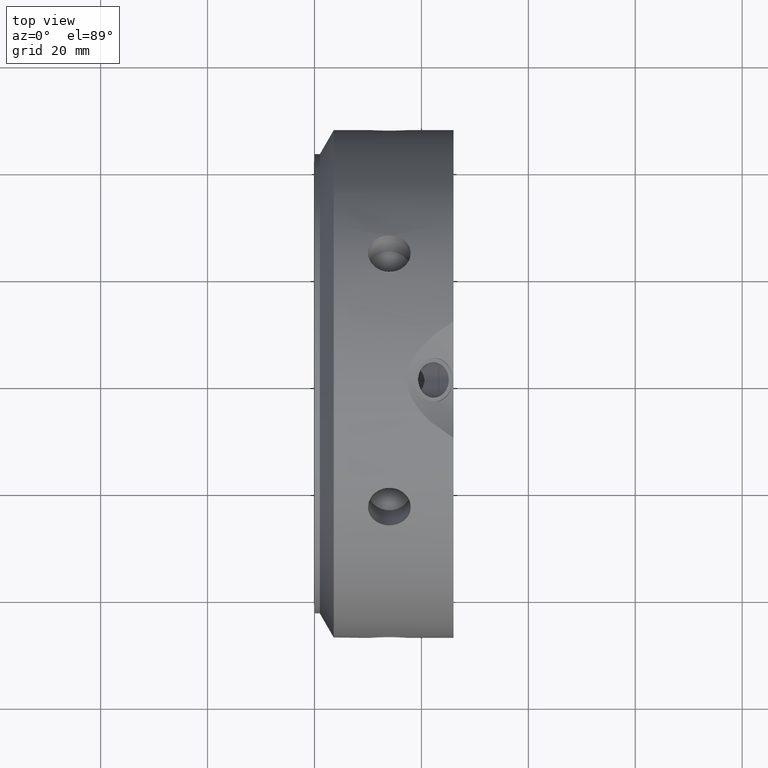
[diagram: clean part render]
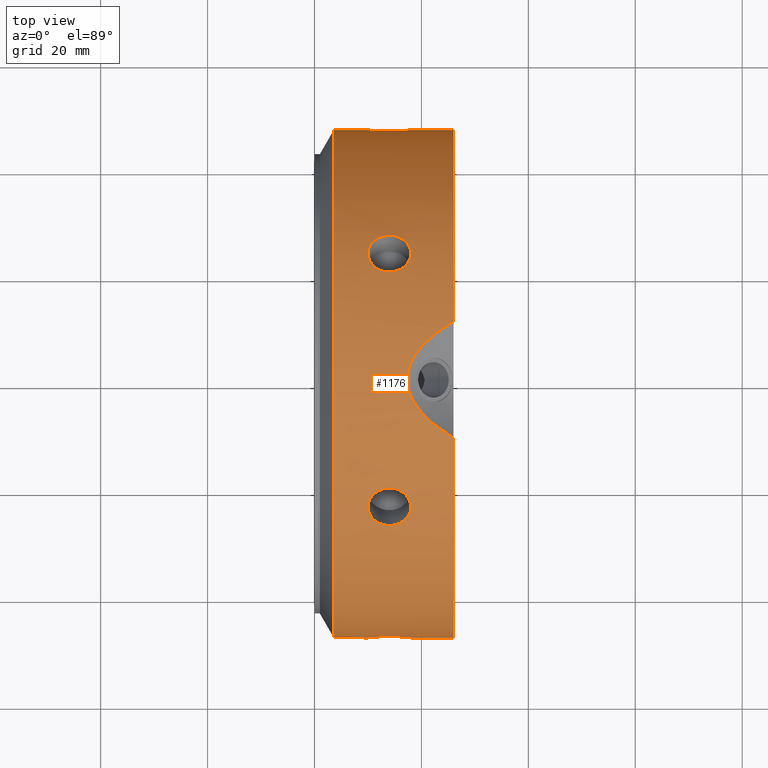
[diagram: same view with one face highlighted and labeled with its STEP entity id]
A machine part, top view. The second image highlights one B-rep face of the part: STEP entity #1176.
In plain terms, the highlighted cylindrical surface (bore or boss wall) has radius 47.5 mm, axis along (1, 0, 0).
Its self-contained STEP definition (entity closure, byte-faithful):
#90=CARTESIAN_POINT('',(10.0,23.750000000000039,41.136206679760825));
#91=VERTEX_POINT('',#90);
#92=CARTESIAN_POINT('',(18.000000000000004,23.750000000000043,41.136206679760825));
#93=VERTEX_POINT('',#92);
#94=CARTESIAN_POINT('',(10.000000000000002,23.750000000000043,41.136206679760804));
#95=CARTESIAN_POINT('',(10.000000000000002,24.185181133532847,40.884954735169394));
#96=CARTESIAN_POINT('',(10.100474216808379,24.64483319324296,40.609422872911829));
#97=CARTESIAN_POINT('',(10.508763108652508,25.482365584349886,40.089176512156172));
#98=CARTESIAN_POINT('',(10.816564635804601,25.860489355434957,39.844843701613414));
#99=CARTESIAN_POINT('',(11.526581720709924,26.454205331477283,39.453155767573421));
#100=CARTESIAN_POINT('',(11.976212649951449,26.709483113884819,39.279707743024822));
#101=CARTESIAN_POINT('',(12.961659270062002,27.047141161063909,39.047971569986842));
#102=CARTESIAN_POINT('',(13.497495253031941,27.129741264215525,38.990090265819092));
#103=CARTESIAN_POINT('',(14.502504746968064,27.129741264215525,38.990090265819092));
#104=CARTESIAN_POINT('',(15.038340729938007,27.047141161063909,39.047971569986842));
#105=CARTESIAN_POINT('',(16.023787350048554,26.709483113884819,39.279707743024822));
#106=CARTESIAN_POINT('',(16.473418279290076,26.454205331477283,39.453155767573421));
#107=CARTESIAN_POINT('',(17.183435364195397,25.860489355434957,39.844843701613414));
#108=CARTESIAN_POINT('',(17.491236891347494,25.482365584349886,40.089176512156172));
#109=CARTESIAN_POINT('',(17.899525783191624,24.64483319324296,40.609422872911829));
#110=CARTESIAN_POINT('',(18.0,24.185181133532847,40.884954735169394));
#111=CARTESIAN_POINT('',(18.0,23.750000000000043,41.136206679760804));
#112=B_SPLINE_CURVE_WITH_KNOTS('',3,(#94,#95,#96,#97,#98,#99,#100,#101,#102,#103,#104,#105,#106,#107,#108,#109,#110,#111),.UNSPECIFIED.,.F.,.U.,(4,2,2,2,2,2,2,2,4),(0.603005181690531,0.753756348445377,0.904507515200224,1.055258939290642,1.20601036338106,1.356761787471478,1.507513211561896,1.658264378316742,1.809015545071589),.UNSPECIFIED.);
#113=EDGE_CURVE('',#91,#93,#112,.T.);
#115=CARTESIAN_POINT('',(18.0,23.75000000000005,41.136206679760804));
#116=CARTESIAN_POINT('',(18.0,23.314818866467245,41.38745862435222));
#117=CARTESIAN_POINT('',(17.899525783191628,22.846375244345086,41.647763053834232));
#118=CARTESIAN_POINT('',(17.491236891347498,21.977062484150814,42.112964200647333));
#119=CARTESIAN_POINT('',(17.183435364195404,21.576402177700214,42.318262586910407));
#120=CARTESIAN_POINT('',(16.47341827929008,20.940332488444575,42.636591737775746));
#121=CARTESIAN_POINT('',(16.023787350048554,20.662483201745488,42.7709447700881));
#122=CARTESIAN_POINT('',(15.038340729938005,20.292964765329266,42.947497130218444));
#123=CARTESIAN_POINT('',(14.502504746968061,20.201538033940018,42.990090265819099));
#124=CARTESIAN_POINT('',(14.000000000000002,20.201538033940018,42.990090265819106));
#125=CARTESIAN_POINT('',(13.497495253031941,20.201538033940018,42.990090265819106));
#126=CARTESIAN_POINT('',(12.961659270062004,20.29296476532927,42.947497130218451));
#127=CARTESIAN_POINT('',(11.976212649951457,20.662483201745495,42.770944770088107));
#128=CARTESIAN_POINT('',(11.526581720709924,20.940332488444575,42.636591737775746));
#129=CARTESIAN_POINT('',(10.8165646358046,21.576402177700214,42.318262586910407));
#130=CARTESIAN_POINT('',(10.508763108652504,21.977062484150821,42.112964200647326));
#131=CARTESIAN_POINT('',(10.100474216808378,22.846375244345086,41.647763053834232));
#132=CARTESIAN_POINT('',(10.000000000000002,23.314818866467242,41.38745862435222));
#133=CARTESIAN_POINT('',(10.000000000000002,23.750000000000043,41.136206679760804));
#134=B_SPLINE_CURVE_WITH_KNOTS('',3,(#115,#116,#117,#118,#119,#120,#121,#122,#123,#124,#125,#126,#127,#128,#129,#130,#131,#132,#133),.UNSPECIFIED.,.F.,.U.,(4,2,2,2,3,2,2,2,4),(1.809015545071589,1.959766711826436,2.110517878581284,2.261269302671702,2.41202072676212,2.562772150852538,2.713523574942956,2.864274741697803,3.015025908452651),.UNSPECIFIED.);
#135=EDGE_CURVE('',#93,#91,#134,.T.);
#202=CARTESIAN_POINT('',(10.0,47.5,-3.164136E-014));
#203=VERTEX_POINT('',#202);
#204=CARTESIAN_POINT('',(18.000000000000004,47.5,-3.108624E-014));
#205=VERTEX_POINT('',#204);
#206=CARTESIAN_POINT('',(10.0,47.5,-3.025358E-014));
#207=CARTESIAN_POINT('',(10.0,47.5,-0.502503889182854));
#208=CARTESIAN_POINT('',(10.100474216808379,47.491208437587964,-1.038340180922445));
#209=CARTESIAN_POINT('',(10.508763108652506,47.459428068500628,-2.023787688491199));
#210=CARTESIAN_POINT('',(10.816564635804601,47.436891533135096,-2.473418885297013));
#211=CARTESIAN_POINT('',(11.526581720709924,47.39453781992178,-3.183435970202335));
#212=CARTESIAN_POINT('',(11.976212649951449,47.371966315630218,-3.491237027063312));
#213=CARTESIAN_POINT('',(12.961659270062002,47.340105926393079,-3.89952556023164));
#214=CARTESIAN_POINT('',(13.497495253031941,47.331279298155451,-4.000000000000031));
#215=CARTESIAN_POINT('',(14.502504746968061,47.331279298155451,-4.000000000000031));
#216=CARTESIAN_POINT('',(15.038340729938003,47.340105926393079,-3.899525560231641));
#217=CARTESIAN_POINT('',(16.023787350048554,47.371966315630218,-3.491237027063315));
#218=CARTESIAN_POINT('',(16.473418279290076,47.39453781992178,-3.183435970202335));
#219=CARTESIAN_POINT('',(17.183435364195397,47.436891533135096,-2.473418885297013));
#220=CARTESIAN_POINT('',(17.491236891347498,47.459428068500628,-2.023787688491201));
#221=CARTESIAN_POINT('',(17.899525783191624,47.491208437587964,-1.038340180922446));
#222=CARTESIAN_POINT('',(18.000000000000004,47.499999999999993,-0.502503889182855));
#223=CARTESIAN_POINT('',(18.000000000000004,47.499999999999993,-3.164136E-014));
#224=B_SPLINE_CURVE_WITH_KNOTS('',3,(#206,#207,#208,#209,#210,#211,#212,#213,#214,#215,#216,#217,#218,#219,#220,#221,#222,#223),.UNSPECIFIED.,.F.,.U.,(4,2,2,2,2,2,2,2,4),(0.60300518169053,0.753756348445377,0.904507515200224,1.055258939290642,1.20601036338106,1.356761787471478,1.507513211561895,1.658264378316742,1.809015545071589),.UNSPECIFIED.);
#225=EDGE_CURVE('',#203,#205,#224,.T.);
#227=CARTESIAN_POINT('',(18.000000000000004,47.499999999999993,-3.178013E-014));
#228=CARTESIAN_POINT('',(18.000000000000004,47.499999999999993,0.502503889182791));
#229=CARTESIAN_POINT('',(17.899525783191624,47.491208437587964,1.038340180922381));
#230=CARTESIAN_POINT('',(17.491236891347498,47.459428068500628,2.023787688491135));
#231=CARTESIAN_POINT('',(17.183435364195404,47.436891533135096,2.473418885296947));
#232=CARTESIAN_POINT('',(16.47341827929008,47.39453781992178,3.18343597020227));
#233=CARTESIAN_POINT('',(16.023787350048554,47.371966315630225,3.491237027063252));
#234=CARTESIAN_POINT('',(15.038340729938005,47.340105926393086,3.899525560231579));
#235=CARTESIAN_POINT('',(14.502504746968064,47.331279298155465,3.999999999999969));
#236=CARTESIAN_POINT('',(14.000000000000002,47.331279298155465,3.999999999999969));
#237=CARTESIAN_POINT('',(13.497495253031941,47.331279298155465,3.999999999999969));
#238=CARTESIAN_POINT('',(12.961659270062,47.340105926393093,3.89952556023158));
#239=CARTESIAN_POINT('',(11.976212649951453,47.371966315630232,3.491237027063253));
#240=CARTESIAN_POINT('',(11.526581720709924,47.394537819921766,3.183435970202273));
#241=CARTESIAN_POINT('',(10.816564635804601,47.436891533135082,2.473418885296952));
#242=CARTESIAN_POINT('',(10.508763108652506,47.459428068500628,2.023787688491138));
#243=CARTESIAN_POINT('',(10.100474216808379,47.491208437587964,1.038340180922384));
#244=CARTESIAN_POINT('',(10.0,47.499999999999993,0.502503889182792));
#245=CARTESIAN_POINT('',(10.0,47.499999999999993,-3.066991E-014));
#246=B_SPLINE_CURVE_WITH_KNOTS('',3,(#227,#228,#229,#230,#231,#232,#233,#234,#235,#236,#237,#238,#239,#240,#241,#242,#243,#244,#245),.UNSPECIFIED.,.F.,.U.,(4,2,2,2,3,2,2,2,4),(1.809015545071589,1.959766711826436,2.110517878581283,2.261269302671701,2.412020726762119,2.562772150852537,2.713523574942955,2.864274741697802,3.015025908452649),.UNSPECIFIED.);
#247=EDGE_CURVE('',#205,#203,#246,.T.);
#314=CARTESIAN_POINT('',(10.0,23.749999999999993,-41.136206679760861));
#315=VERTEX_POINT('',#314);
#316=CARTESIAN_POINT('',(18.000000000000004,23.75,-41.136206679760853));
#317=VERTEX_POINT('',#316);
#318=CARTESIAN_POINT('',(10.000000000000002,23.749999999999993,-41.136206679760846));
#319=CARTESIAN_POINT('',(10.000000000000002,23.314818866467188,-41.387458624352256));
#320=CARTESIAN_POINT('',(10.100474216808378,22.846375244345019,-41.647763053834268));
#321=CARTESIAN_POINT('',(10.508763108652508,21.977062484150753,-42.112964200647355));
#322=CARTESIAN_POINT('',(10.816564635804601,21.57640217770016,-42.318262586910436));
#323=CARTESIAN_POINT('',(11.526581720709924,20.940332488444522,-42.636591737775767));
#324=CARTESIAN_POINT('',(11.976212649951449,20.662483201745438,-42.770944770088128));
#325=CARTESIAN_POINT('',(12.961659270061999,20.292964765329209,-42.947497130218473));
#326=CARTESIAN_POINT('',(13.497495253031941,20.201538033939961,-42.990090265819134));
#327=CARTESIAN_POINT('',(14.502504746968064,20.201538033939961,-42.990090265819134));
#328=CARTESIAN_POINT('',(15.03834072993801,20.292964765329209,-42.947497130218473));
#329=CARTESIAN_POINT('',(16.023787350048554,20.662483201745438,-42.770944770088128));
#330=CARTESIAN_POINT('',(16.473418279290076,20.940332488444522,-42.636591737775767));
#331=CARTESIAN_POINT('',(17.183435364195397,21.576402177700157,-42.318262586910436));
#332=CARTESIAN_POINT('',(17.491236891347498,21.977062484150764,-42.112964200647355));
#333=CARTESIAN_POINT('',(17.899525783191624,22.84637524434503,-41.647763053834268));
#334=CARTESIAN_POINT('',(18.0,23.314818866467188,-41.387458624352256));
#335=CARTESIAN_POINT('',(18.0,23.749999999999993,-41.136206679760846));
#336=B_SPLINE_CURVE_WITH_KNOTS('',3,(#318,#319,#320,#321,#322,#323,#324,#325,#326,#327,#328,#329,#330,#331,#332,#333,#334,#335),.UNSPECIFIED.,.F.,.U.,(4,2,2,2,2,2,2,2,4),(0.60300518169053,0.753756348445377,0.904507515200224,1.055258939290642,1.20601036338106,1.356761787471478,1.507513211561895,1.658264378316743,1.80901554507159),.UNSPECIFIED.);
#337=EDGE_CURVE('',#315,#317,#336,.T.);
#339=CARTESIAN_POINT('',(18.0,23.749999999999993,-41.136206679760846));
#340=CARTESIAN_POINT('',(18.0,24.185181133532797,-40.88495473516943));
#341=CARTESIAN_POINT('',(17.899525783191624,24.64483319324291,-40.609422872911864));
#342=CARTESIAN_POINT('',(17.491236891347501,25.482365584349832,-40.0891765121562));
#343=CARTESIAN_POINT('',(17.183435364195404,25.860489355434908,-39.844843701613449));
#344=CARTESIAN_POINT('',(16.47341827929008,26.45420533147723,-39.453155767573456));
#345=CARTESIAN_POINT('',(16.023787350048551,26.709483113884758,-39.279707743024858));
#346=CARTESIAN_POINT('',(15.038340729938,27.047141161063848,-39.047971569986878));
#347=CARTESIAN_POINT('',(14.502504746968061,27.129741264215475,-38.990090265819134));
#348=CARTESIAN_POINT('',(14.000000000000002,27.129741264215475,-38.990090265819134));
#349=CARTESIAN_POINT('',(13.497495253031941,27.129741264215475,-38.990090265819134));
#350=CARTESIAN_POINT('',(12.961659270062002,27.047141161063848,-39.047971569986878));
#351=CARTESIAN_POINT('',(11.976212649951453,26.709483113884758,-39.279707743024858));
#352=CARTESIAN_POINT('',(11.526581720709924,26.45420533147723,-39.453155767573456));
#353=CARTESIAN_POINT('',(10.816564635804601,25.860489355434908,-39.844843701613442));
#354=CARTESIAN_POINT('',(10.508763108652504,25.482365584349836,-40.089176512156193));
#355=CARTESIAN_POINT('',(10.100474216808376,24.64483319324291,-40.60942287291185));
#356=CARTESIAN_POINT('',(10.0,24.185181133532794,-40.88495473516943));
#357=CARTESIAN_POINT('',(10.0,23.749999999999993,-41.136206679760846));
#358=B_SPLINE_CURVE_WITH_KNOTS('',3,(#339,#340,#341,#342,#343,#344,#345,#346,#347,#348,#349,#350,#351,#352,#353,#354,#355,#356,#357),.UNSPECIFIED.,.F.,.U.,(4,2,2,2,3,2,2,2,4),(1.80901554507159,1.959766711826437,2.110517878581284,2.261269302671702,2.412020726762119,2.562772150852537,2.713523574942955,2.864274741697802,3.015025908452649),.UNSPECIFIED.);
#359=EDGE_CURVE('',#317,#315,#358,.T.);
#426=CARTESIAN_POINT('',(10.0,-23.750000000000014,-41.136206679760825));
#427=VERTEX_POINT('',#426);
#428=CARTESIAN_POINT('',(18.000000000000004,-23.750000000000018,-41.136206679760825));
#429=VERTEX_POINT('',#428);
#430=CARTESIAN_POINT('',(10.0,-23.750000000000018,-41.136206679760818));
#431=CARTESIAN_POINT('',(10.0,-24.185181133532826,-40.884954735169401));
#432=CARTESIAN_POINT('',(10.100474216808378,-24.644833193242942,-40.609422872911836));
#433=CARTESIAN_POINT('',(10.508763108652504,-25.482365584349868,-40.089176512156179));
#434=CARTESIAN_POINT('',(10.8165646358046,-25.860489355434943,-39.844843701613421));
#435=CARTESIAN_POINT('',(11.526581720709926,-26.454205331477265,-39.453155767573435));
#436=CARTESIAN_POINT('',(11.976212649951455,-26.709483113884794,-39.279707743024836));
#437=CARTESIAN_POINT('',(12.961659270062004,-27.047141161063884,-39.047971569986856));
#438=CARTESIAN_POINT('',(13.497495253031941,-27.129741264215504,-38.990090265819106));
#439=CARTESIAN_POINT('',(14.502504746968059,-27.129741264215504,-38.990090265819106));
#440=CARTESIAN_POINT('',(15.038340729937996,-27.04714116106388,-39.047971569986856));
#441=CARTESIAN_POINT('',(16.023787350048547,-26.70948311388479,-39.279707743024836));
#442=CARTESIAN_POINT('',(16.473418279290076,-26.454205331477265,-39.453155767573435));
#443=CARTESIAN_POINT('',(17.183435364195397,-25.860489355434943,-39.844843701613421));
#444=CARTESIAN_POINT('',(17.491236891347494,-25.482365584349871,-40.089176512156172));
#445=CARTESIAN_POINT('',(17.899525783191624,-24.644833193242945,-40.609422872911829));
#446=CARTESIAN_POINT('',(18.0,-24.185181133532829,-40.884954735169401));
#447=CARTESIAN_POINT('',(18.0,-23.750000000000021,-41.136206679760818));
#448=B_SPLINE_CURVE_WITH_KNOTS('',3,(#430,#431,#432,#433,#434,#435,#436,#437,#438,#439,#440,#441,#442,#443,#444,#445,#446,#447),.UNSPECIFIED.,.F.,.U.,(4,2,2,2,2,2,2,2,4),(0.60300518169053,0.753756348445377,0.904507515200224,1.055258939290642,1.20601036338106,1.356761787471478,1.507513211561896,1.658264378316743,1.80901554507159),.UNSPECIFIED.);
#449=EDGE_CURVE('',#427,#429,#448,.T.);
#451=CARTESIAN_POINT('',(18.000000000000004,-23.750000000000021,-41.136206679760825));
#452=CARTESIAN_POINT('',(18.000000000000004,-23.31481886646722,-41.387458624352234));
#453=CARTESIAN_POINT('',(17.899525783191624,-22.846375244345055,-41.64776305383424));
#454=CARTESIAN_POINT('',(17.491236891347498,-21.977062484150785,-42.11296420064734));
#455=CARTESIAN_POINT('',(17.183435364195404,-21.576402177700196,-42.318262586910421));
#456=CARTESIAN_POINT('',(16.473418279290076,-20.940332488444557,-42.636591737775753));
#457=CARTESIAN_POINT('',(16.023787350048547,-20.662483201745466,-42.770944770088121));
#458=CARTESIAN_POINT('',(15.038340729938003,-20.292964765329241,-42.947497130218466));
#459=CARTESIAN_POINT('',(14.502504746968061,-20.201538033939997,-42.99009026581912));
#460=CARTESIAN_POINT('',(14.000000000000002,-20.201538033939997,-42.99009026581912));
#461=CARTESIAN_POINT('',(13.497495253031939,-20.201538033939997,-42.99009026581912));
#462=CARTESIAN_POINT('',(12.961659270061999,-20.292964765329245,-42.947497130218451));
#463=CARTESIAN_POINT('',(11.976212649951453,-20.662483201745474,-42.770944770088107));
#464=CARTESIAN_POINT('',(11.526581720709924,-20.940332488444557,-42.636591737775753));
#465=CARTESIAN_POINT('',(10.816564635804601,-21.576402177700196,-42.318262586910421));
#466=CARTESIAN_POINT('',(10.508763108652502,-21.977062484150792,-42.11296420064734));
#467=CARTESIAN_POINT('',(10.100474216808376,-22.846375244345062,-41.647763053834254));
#468=CARTESIAN_POINT('',(10.000000000000002,-23.314818866467213,-41.387458624352227));
#469=CARTESIAN_POINT('',(10.000000000000002,-23.750000000000021,-41.136206679760818));
#470=B_SPLINE_CURVE_WITH_KNOTS('',3,(#451,#452,#453,#454,#455,#456,#457,#458,#459,#460,#461,#462,#463,#464,#465,#466,#467,#468,#469),.UNSPECIFIED.,.F.,.U.,(4,2,2,2,3,2,2,2,4),(1.80901554507159,1.959766711826437,2.110517878581284,2.261269302671702,2.41202072676212,2.562772150852538,2.713523574942957,2.864274741697804,3.015025908452651),.UNSPECIFIED.);
#471=EDGE_CURVE('',#429,#427,#470,.T.);
#538=CARTESIAN_POINT('',(10.0,-47.5,1.318390E-014));
#539=VERTEX_POINT('',#538);
#540=CARTESIAN_POINT('',(18.000000000000004,-47.5,1.332268E-014));
#541=VERTEX_POINT('',#540);
#542=CARTESIAN_POINT('',(10.0,-47.5,1.373901E-014));
#543=CARTESIAN_POINT('',(10.0,-47.5,0.502503889182837));
#544=CARTESIAN_POINT('',(10.100474216808378,-47.491208437587964,1.038340180922428));
#545=CARTESIAN_POINT('',(10.508763108652504,-47.459428068500628,2.023787688491183));
#546=CARTESIAN_POINT('',(10.816564635804601,-47.436891533135096,2.473418885296996));
#547=CARTESIAN_POINT('',(11.526581720709924,-47.39453781992178,3.183435970202319));
#548=CARTESIAN_POINT('',(11.976212649951449,-47.371966315630218,3.491237027063296));
#549=CARTESIAN_POINT('',(12.961659270062,-47.340105926393079,3.899525560231625));
#550=CARTESIAN_POINT('',(13.497495253031941,-47.331279298155458,4.000000000000014));
#551=CARTESIAN_POINT('',(14.502504746968064,-47.331279298155465,4.000000000000014));
#552=CARTESIAN_POINT('',(15.038340729938007,-47.340105926393079,3.899525560231623));
#553=CARTESIAN_POINT('',(16.023787350048551,-47.371966315630218,3.491237027063297));
#554=CARTESIAN_POINT('',(16.473418279290076,-47.394537819921766,3.183435970202319));
#555=CARTESIAN_POINT('',(17.183435364195397,-47.436891533135082,2.473418885296997));
#556=CARTESIAN_POINT('',(17.491236891347498,-47.459428068500628,2.023787688491185));
#557=CARTESIAN_POINT('',(17.899525783191624,-47.491208437587964,1.038340180922429));
#558=CARTESIAN_POINT('',(18.000000000000004,-47.499999999999993,0.502503889182838));
#559=CARTESIAN_POINT('',(18.000000000000004,-47.499999999999993,1.512679E-014));
#560=B_SPLINE_CURVE_WITH_KNOTS('',3,(#542,#543,#544,#545,#546,#547,#548,#549,#550,#551,#552,#553,#554,#555,#556,#557,#558,#559),.UNSPECIFIED.,.F.,.U.,(4,2,2,2,2,2,2,2,4),(0.60300518169053,0.753756348445377,0.904507515200224,1.055258939290642,1.20601036338106,1.356761787471478,1.507513211561895,1.658264378316742,1.809015545071589),.UNSPECIFIED.);
#561=EDGE_CURVE('',#539,#541,#560,.T.);
#563=CARTESIAN_POINT('',(18.000000000000004,-47.499999999999993,1.526557E-014));
#564=CARTESIAN_POINT('',(18.000000000000004,-47.499999999999993,-0.502503889182808));
#565=CARTESIAN_POINT('',(17.899525783191624,-47.491208437587964,-1.038340180922399));
#566=CARTESIAN_POINT('',(17.491236891347498,-47.459428068500628,-2.023787688491153));
#567=CARTESIAN_POINT('',(17.1834353641954,-47.436891533135096,-2.473418885296967));
#568=CARTESIAN_POINT('',(16.47341827929008,-47.39453781992178,-3.183435970202289));
#569=CARTESIAN_POINT('',(16.023787350048554,-47.371966315630218,-3.491237027063269));
#570=CARTESIAN_POINT('',(15.038340729938,-47.340105926393079,-3.899525560231597));
#571=CARTESIAN_POINT('',(14.502504746968061,-47.331279298155458,-3.999999999999986));
#572=CARTESIAN_POINT('',(14.000000000000002,-47.331279298155458,-3.999999999999986));
#573=CARTESIAN_POINT('',(13.497495253031941,-47.331279298155458,-3.999999999999986));
#574=CARTESIAN_POINT('',(12.961659270062002,-47.340105926393079,-3.899525560231597));
#575=CARTESIAN_POINT('',(11.976212649951449,-47.371966315630218,-3.491237027063269));
#576=CARTESIAN_POINT('',(11.526581720709924,-47.39453781992178,-3.183435970202289));
#577=CARTESIAN_POINT('',(10.816564635804601,-47.436891533135096,-2.473418885296968));
#578=CARTESIAN_POINT('',(10.508763108652506,-47.459428068500628,-2.023787688491154));
#579=CARTESIAN_POINT('',(10.100474216808379,-47.491208437587964,-1.0383401809224));
#580=CARTESIAN_POINT('',(10.0,-47.499999999999993,-0.502503889182809));
#581=CARTESIAN_POINT('',(10.0,-47.499999999999993,1.373901E-014));
#582=B_SPLINE_CURVE_WITH_KNOTS('',3,(#563,#564,#565,#566,#567,#568,#569,#570,#571,#572,#573,#574,#575,#576,#577,#578,#579,#580,#581),.UNSPECIFIED.,.F.,.U.,(4,2,2,2,3,2,2,2,4),(1.809015545071589,1.959766711826436,2.110517878581283,2.261269302671701,2.412020726762119,2.562772150852537,2.713523574942955,2.864274741697802,3.015025908452649),.UNSPECIFIED.);
#583=EDGE_CURVE('',#541,#539,#582,.T.);
#687=CARTESIAN_POINT('',(10.0,-23.749999999999996,41.136206679760846));
#688=VERTEX_POINT('',#687);
#689=CARTESIAN_POINT('',(18.000000000000004,-23.749999999999996,41.136206679760846));
#690=VERTEX_POINT('',#689);
#691=CARTESIAN_POINT('',(10.0,-23.749999999999996,41.136206679760846));
#692=CARTESIAN_POINT('',(10.0,-23.314818866467188,41.387458624352256));
#693=CARTESIAN_POINT('',(10.100474216808378,-22.84637524434503,41.647763053834261));
#694=CARTESIAN_POINT('',(10.508763108652504,-21.977062484150764,42.112964200647347));
#695=CARTESIAN_POINT('',(10.816564635804601,-21.576402177700164,42.318262586910429));
#696=CARTESIAN_POINT('',(11.526581720709924,-20.940332488444533,42.63659173777576));
#697=CARTESIAN_POINT('',(11.976212649951453,-20.662483201745445,42.770944770088128));
#698=CARTESIAN_POINT('',(12.961659270062,-20.29296476532922,42.947497130218473));
#699=CARTESIAN_POINT('',(13.497495253031941,-20.201538033939972,42.990090265819127));
#700=CARTESIAN_POINT('',(14.502504746968061,-20.201538033939972,42.990090265819127));
#701=CARTESIAN_POINT('',(15.038340729938003,-20.29296476532922,42.947497130218473));
#702=CARTESIAN_POINT('',(16.023787350048551,-20.662483201745445,42.770944770088128));
#703=CARTESIAN_POINT('',(16.47341827929008,-20.940332488444533,42.63659173777576));
#704=CARTESIAN_POINT('',(17.183435364195404,-21.576402177700164,42.318262586910429));
#705=CARTESIAN_POINT('',(17.491236891347501,-21.977062484150768,42.112964200647347));
#706=CARTESIAN_POINT('',(17.899525783191624,-22.846375244345033,41.647763053834261));
#707=CARTESIAN_POINT('',(18.0,-23.314818866467192,41.387458624352256));
#708=CARTESIAN_POINT('',(18.0,-23.749999999999996,41.136206679760846));
#709=B_SPLINE_CURVE_WITH_KNOTS('',3,(#691,#692,#693,#694,#695,#696,#697,#698,#699,#700,#701,#702,#703,#704,#705,#706,#707,#708),.UNSPECIFIED.,.F.,.U.,(4,2,2,2,2,2,2,2,4),(0.60300518169053,0.753756348445377,0.904507515200224,1.055258939290642,1.20601036338106,1.356761787471478,1.507513211561896,1.658264378316742,1.809015545071589),.UNSPECIFIED.);
#710=EDGE_CURVE('',#688,#690,#709,.T.);
#712=CARTESIAN_POINT('',(18.0,-23.749999999999996,41.136206679760832));
#713=CARTESIAN_POINT('',(18.0,-24.185181133532801,40.884954735169423));
#714=CARTESIAN_POINT('',(17.899525783191624,-24.644833193242917,40.609422872911843));
#715=CARTESIAN_POINT('',(17.491236891347498,-25.482365584349843,40.089176512156186));
#716=CARTESIAN_POINT('',(17.183435364195404,-25.860489355434915,39.844843701613449));
#717=CARTESIAN_POINT('',(16.47341827929008,-26.45420533147724,39.453155767573456));
#718=CARTESIAN_POINT('',(16.023787350048554,-26.709483113884765,39.279707743024851));
#719=CARTESIAN_POINT('',(15.038340729938003,-27.047141161063855,39.047971569986871));
#720=CARTESIAN_POINT('',(14.502504746968061,-27.129741264215479,38.99009026581912));
#721=CARTESIAN_POINT('',(14.000000000000002,-27.129741264215479,38.99009026581912));
#722=CARTESIAN_POINT('',(13.497495253031941,-27.129741264215479,38.99009026581912));
#723=CARTESIAN_POINT('',(12.961659270062,-27.047141161063859,39.047971569986871));
#724=CARTESIAN_POINT('',(11.976212649951453,-26.709483113884769,39.279707743024851));
#725=CARTESIAN_POINT('',(11.526581720709924,-26.454205331477244,39.453155767573456));
#726=CARTESIAN_POINT('',(10.8165646358046,-25.860489355434915,39.844843701613449));
#727=CARTESIAN_POINT('',(10.508763108652506,-25.482365584349843,40.089176512156186));
#728=CARTESIAN_POINT('',(10.100474216808379,-24.644833193242917,40.609422872911843));
#729=CARTESIAN_POINT('',(10.000000000000002,-24.185181133532797,40.884954735169423));
#730=CARTESIAN_POINT('',(10.000000000000002,-23.749999999999993,41.136206679760832));
#731=B_SPLINE_CURVE_WITH_KNOTS('',3,(#712,#713,#714,#715,#716,#717,#718,#719,#720,#721,#722,#723,#724,#725,#726,#727,#728,#729,#730),.UNSPECIFIED.,.F.,.U.,(4,2,2,2,3,2,2,2,4),(1.809015545071589,1.959766711826436,2.110517878581284,2.261269302671702,2.41202072676212,2.562772150852538,2.713523574942956,2.864274741697803,3.01502590845265),.UNSPECIFIED.);
#732=EDGE_CURVE('',#690,#688,#731,.T.);
#873=CARTESIAN_POINT('',(25.999999999999986,34.587556014336464,-32.556888195205907));
#874=VERTEX_POINT('',#873);
#875=CARTESIAN_POINT('',(25.999999999999982,45.488870252386242,-13.6752580656297));
#876=VERTEX_POINT('',#875);
#884=CARTESIAN_POINT('',(25.999999999999986,45.488870252386235,-13.675258065629707));
#885=CARTESIAN_POINT('',(25.00314135916846,45.316299798800515,-14.24929000966195));
#886=CARTESIAN_POINT('',(24.047230153161223,45.12261753978342,-14.854774890711695));
#887=CARTESIAN_POINT('',(21.694038090053986,44.541956084429764,-16.5368977002951));
#888=CARTESIAN_POINT('',(20.220225599003751,44.066118291939247,-17.798802015075658));
#889=CARTESIAN_POINT('',(18.583768462164496,43.132342476653832,-19.910891100705836));
#890=CARTESIAN_POINT('',(18.133074162779781,42.78410235715252,-20.651895575692013));
#891=CARTESIAN_POINT('',(17.51081573067605,42.013607340468184,-22.177398488511784));
#892=CARTESIAN_POINT('',(17.339745962155632,41.591158391407177,-22.96200052043811));
#893=CARTESIAN_POINT('',(17.339745962155632,40.681254968114473,-24.537999479561925));
#894=CARTESIAN_POINT('',(17.510815730676029,40.212994151135888,-25.296152017213956));
#895=CARTESIAN_POINT('',(18.133074162779756,39.277117383428973,-26.726171731561799));
#896=CARTESIAN_POINT('',(18.5837684621645,38.809508743523651,-27.39825875915994));
#897=CARTESIAN_POINT('',(20.220225599003761,37.447273847954776,-29.262976879451728));
#898=CARTESIAN_POINT('',(21.694038090053986,36.592351550454865,-30.306016653219515));
#899=CARTESIAN_POINT('',(24.047230153161223,35.425921192747211,-31.649945629345915));
#900=CARTESIAN_POINT('',(25.00314135916846,34.998397033659295,-32.120421826441955));
#901=CARTESIAN_POINT('',(25.999999999999986,34.587556014336457,-32.556888195205907));
#902=B_SPLINE_CURVE_WITH_KNOTS('',3,(#884,#885,#886,#887,#888,#889,#890,#891,#892,#893,#894,#895,#896,#897,#898,#899,#900,#901),.UNSPECIFIED.,.F.,.U.,(4,2,2,2,2,2,2,2,4),(2.309694130139443,2.648839415487604,3.194781469463227,3.467752496451038,3.74072352343885,4.013694550426662,4.286665577414474,4.832607631390097,5.171752916738257),.UNSPECIFIED.);
#903=EDGE_CURVE('',#876,#874,#902,.T.);
#1044=CARTESIAN_POINT('',(25.999999999999986,-45.488870252386249,-13.675258065629665));
#1045=VERTEX_POINT('',#1044);
#1046=CARTESIAN_POINT('',(25.999999999999986,-34.587556014336464,-32.556888195205907));
#1047=VERTEX_POINT('',#1046);
#1055=CARTESIAN_POINT('',(25.999999999999996,-34.587556014336471,-32.556888195205893));
#1056=CARTESIAN_POINT('',(24.947085469510721,-35.021499666171806,-32.09587821553805));
#1057=CARTESIAN_POINT('',(23.939922083497912,-35.473979413482645,-31.597041927772295));
#1058=CARTESIAN_POINT('',(21.576750859166999,-36.659291576304199,-30.224658329284047));
#1059=CARTESIAN_POINT('',(20.139233550412271,-37.503413858167576,-29.1900351368683));
#1060=CARTESIAN_POINT('',(18.546469622061096,-38.84661798417212,-27.345362343855342));
#1061=CARTESIAN_POINT('',(18.10851510260553,-39.307447322999927,-26.681160283266774));
#1062=CARTESIAN_POINT('',(17.504887962143368,-40.228855932410418,-25.270514034924368));
#1063=CARTESIAN_POINT('',(17.339745962155632,-40.689430192062595,-24.523839576320519));
#1064=CARTESIAN_POINT('',(17.339745962155632,-41.582983167459091,-22.97616042367946));
#1065=CARTESIAN_POINT('',(17.504887962143364,-41.999335087140921,-22.203954185189541));
#1066=CARTESIAN_POINT('',(18.10851510260553,-42.760286269253399,-20.700667798003167));
#1067=CARTESIAN_POINT('',(18.546469622061096,-43.105087457555172,-19.969476853474802));
#1068=CARTESIAN_POINT('',(20.139233550412282,-44.031018894972114,-17.88389156138031));
#1069=CARTESIAN_POINT('',(21.576750859167007,-44.504967722017021,-16.635548625178266));
#1070=CARTESIAN_POINT('',(23.939922083497919,-45.10083070063417,-14.922846381516013));
#1071=CARTESIAN_POINT('',(24.947085469510718,-45.306595724513414,-14.281569281763977));
#1072=CARTESIAN_POINT('',(25.999999999999993,-45.488870252386249,-13.675258065629674));
#1073=B_SPLINE_CURVE_WITH_KNOTS('',3,(#1055,#1056,#1057,#1058,#1059,#1060,#1061,#1062,#1063,#1064,#1065,#1066,#1067,#1068,#1069,#1070,#1071,#1072),.UNSPECIFIED.,.F.,.U.,(4,2,2,2,2,2,2,2,4),(2.239922060294117,2.59741670204986,3.133548487287753,3.401614379906699,3.669680272525645,3.937746165144592,4.205812057763538,4.741943843001431,5.099438484757172),.UNSPECIFIED.);
#1074=EDGE_CURVE('',#1047,#1045,#1073,.T.);
#1082=CARTESIAN_POINT('',(14.799038105676644,0.0,0.0));
#1083=DIRECTION('',(1.0,0.0,0.0));
#1084=DIRECTION('',(0.0,1.0,0.0));
#1085=AXIS2_PLACEMENT_3D('',#1082,#1083,#1084);
#1086=CYLINDRICAL_SURFACE('',#1085,47.5);
#1087=CARTESIAN_POINT('',(3.598076211353298,47.5,0.0));
#1088=VERTEX_POINT('',#1087);
#1089=CARTESIAN_POINT('',(3.598076211353298,0.0,0.0));
#1090=DIRECTION('',(1.0,0.0,0.0));
#1091=DIRECTION('',(0.0,1.0,0.0));
#1092=AXIS2_PLACEMENT_3D('',#1089,#1090,#1091);
#1093=CIRCLE('',#1092,47.5);
#1094=EDGE_CURVE('',#1088,#1088,#1093,.T.);
#1095=ORIENTED_EDGE('',*,*,#1094,.T.);
#1096=EDGE_LOOP('',(#1095));
#1097=FACE_OUTER_BOUND('',#1096,.T.);
#1098=ORIENTED_EDGE('',*,*,#113,.T.);
#1099=ORIENTED_EDGE('',*,*,#135,.T.);
#1100=EDGE_LOOP('',(#1098,#1099));
#1101=FACE_BOUND('',#1100,.T.);
#1102=ORIENTED_EDGE('',*,*,#225,.T.);
#1103=ORIENTED_EDGE('',*,*,#247,.T.);
#1104=EDGE_LOOP('',(#1102,#1103));
#1105=FACE_BOUND('',#1104,.T.);
#1106=ORIENTED_EDGE('',*,*,#337,.T.);
#1107=ORIENTED_EDGE('',*,*,#359,.T.);
#1108=EDGE_LOOP('',(#1106,#1107));
#1109=FACE_BOUND('',#1108,.T.);
#1110=ORIENTED_EDGE('',*,*,#449,.T.);
#1111=ORIENTED_EDGE('',*,*,#471,.T.);
#1112=EDGE_LOOP('',(#1110,#1111));
#1113=FACE_BOUND('',#1112,.T.);
#1114=ORIENTED_EDGE('',*,*,#561,.T.);
#1115=ORIENTED_EDGE('',*,*,#583,.T.);
#1116=EDGE_LOOP('',(#1114,#1115));
#1117=FACE_BOUND('',#1116,.T.);
#1118=ORIENTED_EDGE('',*,*,#710,.T.);
#1119=ORIENTED_EDGE('',*,*,#732,.T.);
#1120=EDGE_LOOP('',(#1118,#1119));
#1121=FACE_BOUND('',#1120,.T.);
#1122=ORIENTED_EDGE('',*,*,#903,.T.);
#1123=CARTESIAN_POINT('',(25.999999999999986,0.0,0.0));
#1124=DIRECTION('',(1.0,0.0,0.0));
#1125=DIRECTION('',(0.0,1.0,0.0));
#1126=AXIS2_PLACEMENT_3D('',#1123,#1124,#1125);
#1127=CIRCLE('',#1126,47.5);
#1128=EDGE_CURVE('',#1047,#874,#1127,.T.);
#1129=ORIENTED_EDGE('',*,*,#1128,.F.);
#1130=ORIENTED_EDGE('',*,*,#1074,.T.);
#1131=CARTESIAN_POINT('',(25.999999999999986,-10.901314238049778,46.232146260835584));
#1132=VERTEX_POINT('',#1131);
#1133=CARTESIAN_POINT('',(25.999999999999986,0.0,0.0));
#1134=DIRECTION('',(1.0,0.0,0.0));
#1135=DIRECTION('',(0.0,1.0,0.0));
#1136=AXIS2_PLACEMENT_3D('',#1133,#1134,#1135);
#1137=CIRCLE('',#1136,47.5);
#1138=EDGE_CURVE('',#1132,#1045,#1137,.T.);
#1139=ORIENTED_EDGE('',*,*,#1138,.F.);
#1140=CARTESIAN_POINT('',(25.999999999999986,10.901314238049778,46.232146260835584));
#1141=VERTEX_POINT('',#1140);
#1142=CARTESIAN_POINT('',(25.999999999999993,-10.901314238049771,46.232146260835577));
#1143=CARTESIAN_POINT('',(25.673886779460368,-10.710456490986186,46.277149585227392));
#1144=CARTESIAN_POINT('',(25.35207101527638,-10.515426634661434,46.321890233680129));
#1145=CARTESIAN_POINT('',(23.637611398579907,-9.436823671789039,46.561869533760543));
#1146=CARTESIAN_POINT('',(22.334503562945407,-8.475640948631762,46.750273537081711));
#1147=CARTESIAN_POINT('',(20.18229441235853,-6.465228025796989,47.067570843249705));
#1148=CARTESIAN_POINT('',(19.18616558384252,-5.325802574446756,47.217645466457554));
#1149=CARTESIAN_POINT('',(18.11538025310464,-3.423450128357167,47.380745700776394));
#1150=CARTESIAN_POINT('',(17.827843855073233,-2.756549863536812,47.424871445615608));
#1151=CARTESIAN_POINT('',(17.439785614730042,-1.39110686586418,47.484542964415681));
#1152=CARTESIAN_POINT('',(17.339745962155632,-0.692423264591406,47.5));
#1153=CARTESIAN_POINT('',(17.339745962155632,0.692423264591407,47.5));
#1154=CARTESIAN_POINT('',(17.439785614730042,1.39110686586418,47.484542964415681));
#1155=CARTESIAN_POINT('',(17.827843855073233,2.756549863536812,47.424871445615608));
#1156=CARTESIAN_POINT('',(18.11538025310464,3.423450128357167,47.380745700776394));
#1157=CARTESIAN_POINT('',(19.18616558384252,5.325802574446756,47.217645466457554));
#1158=CARTESIAN_POINT('',(20.18229441235853,6.465228025796987,47.067570843249705));
#1159=CARTESIAN_POINT('',(22.334503562945407,8.47564094863176,46.750273537081711));
#1160=CARTESIAN_POINT('',(23.637611398579917,9.43682367178903,46.561869533760543));
#1161=CARTESIAN_POINT('',(25.35207101527639,10.515426634661424,46.321890233680136));
#1162=CARTESIAN_POINT('',(25.673886779460364,10.710456490986189,46.277149585227392));
#1163=CARTESIAN_POINT('',(25.999999999999986,10.901314238049773,46.232146260835577));
#1164=B_SPLINE_CURVE_WITH_KNOTS('',3,(#1142,#1143,#1144,#1145,#1146,#1147,#1148,#1149,#1150,#1151,#1152,#1153,#1154,#1155,#1156,#1157,#1158,#1159,#1160,#1161,#1162,#1163),.UNSPECIFIED.,.F.,.U.,(4,2,2,2,2,2,2,2,2,2,4),(1.312296176481806,1.419589729114806,1.892786305486408,2.308240264241251,2.515967243618673,2.723694222996095,2.931421202373516,3.139148181750938,3.554602140505781,4.027798716877383,4.135092269510383),.UNSPECIFIED.);
#1165=EDGE_CURVE('',#1132,#1141,#1164,.T.);
#1166=ORIENTED_EDGE('',*,*,#1165,.T.);
#1167=CARTESIAN_POINT('',(25.999999999999986,0.0,0.0));
#1168=DIRECTION('',(1.0,0.0,0.0));
#1169=DIRECTION('',(0.0,1.0,0.0));
#1170=AXIS2_PLACEMENT_3D('',#1167,#1168,#1169);
#1171=CIRCLE('',#1170,47.5);
#1172=EDGE_CURVE('',#876,#1141,#1171,.T.);
#1173=ORIENTED_EDGE('',*,*,#1172,.F.);
#1174=EDGE_LOOP('',(#1122,#1129,#1130,#1139,#1166,#1173));
#1175=FACE_BOUND('',#1174,.T.);
#1176=ADVANCED_FACE('',(#1097,#1101,#1105,#1109,#1113,#1117,#1121,#1175),#1086,.T.);